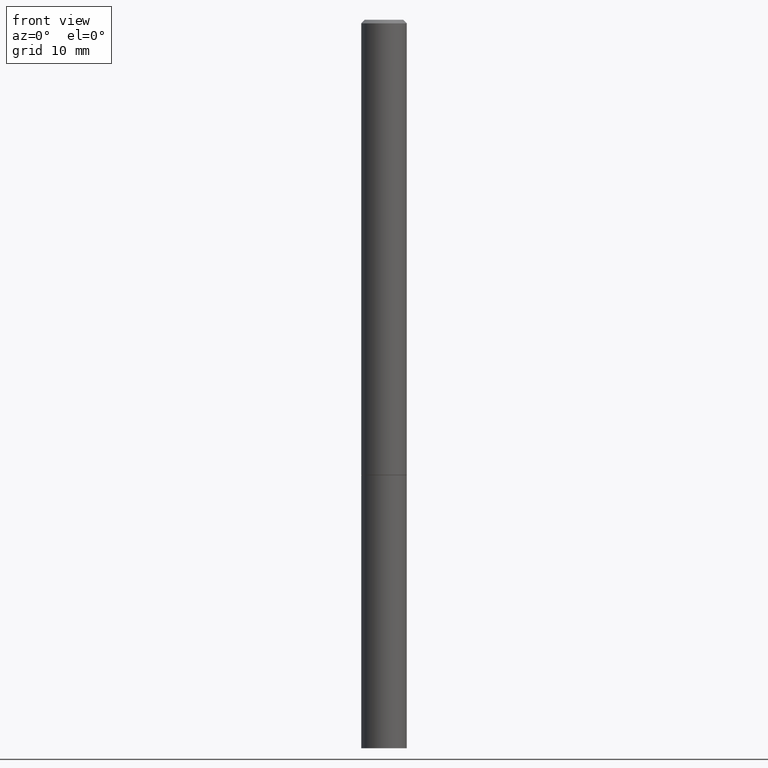
[diagram: clean part render]
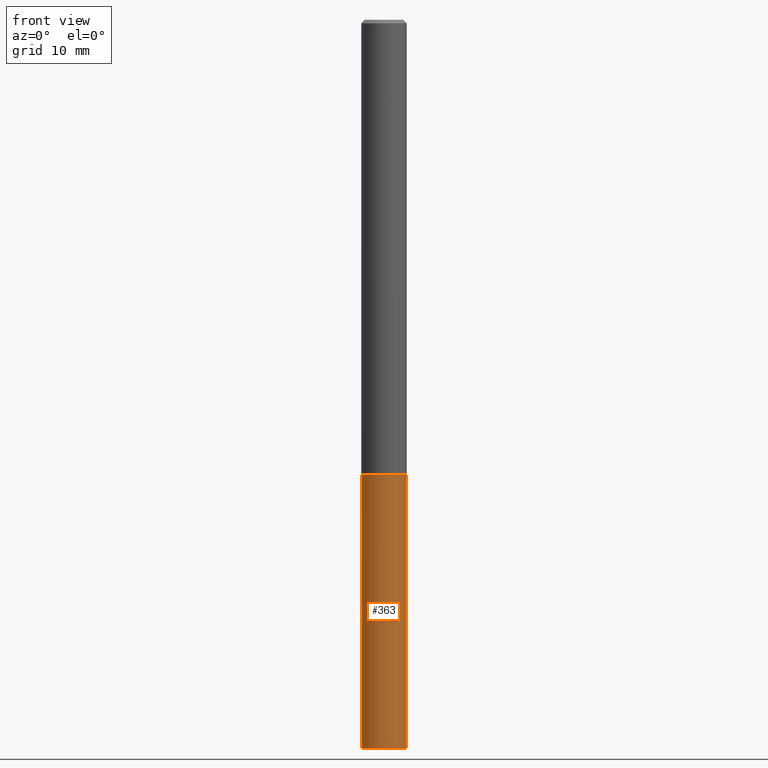
[diagram: same view with one face highlighted and labeled with its STEP entity id]
A machine part, front view. The second image highlights one B-rep face of the part: STEP entity #363.
In plain terms, the highlighted cylindrical surface (edge-blend (fillet) strip) has radius 3.175 mm, axis along (-0, 0, 1).
Its self-contained STEP definition (entity closure, byte-faithful):
#7 = AXIS2_PLACEMENT_3D ( 'NONE', #217, #327, #156 ) ;
#8 = EDGE_CURVE ( 'NONE', #333, #229, #209, .T. ) ;
#24 = CARTESIAN_POINT ( 'NONE',  ( 0.1250000000000000000, -9.601573681818648281E-15, -2.500000000000000000 ) ) ;
#39 = DIRECTION ( 'NONE',  ( -2.445468806185136597E-29, 3.491481338843145583E-15, 1.000000000000000000 ) ) ;
#41 = EDGE_CURVE ( 'NONE', #290, #305, #150, .T. ) ;
#42 = CARTESIAN_POINT ( 'NONE',  ( 0.1249999999999997918, -1.482348760509402220E-14, -4.000000000000000000 ) ) ;
#55 = CARTESIAN_POINT ( 'NONE',  ( -0.1250000000000000000, 8.881784197001252323E-16, -6.148668862818632227E-30 ) ) ;
#75 = CYLINDRICAL_SURFACE ( 'NONE', #361, 0.1250000000000000000 ) ;
#81 = DIRECTION ( 'NONE',  ( -2.445468806185136877E-29, 3.491481338843145188E-15, 1.000000000000000000 ) ) ;
#90 = DIRECTION ( 'NONE',  ( -2.445468806185136597E-29, 3.491481338843145583E-15, 1.000000000000000000 ) ) ;
#103 = CIRCLE ( 'NONE', #7, 0.1250000000000000000 ) ;
#104 = EDGE_LOOP ( 'NONE', ( #266, #109, #287, #261 ) ) ;
#106 = EDGE_CURVE ( 'NONE', #305, #229, #254, .T. ) ;
#109 = ORIENTED_EDGE ( 'NONE', *, *, #281, .T. ) ;
#115 = VECTOR ( 'NONE', #215, 39.37007874015748143 ) ;
#118 = CARTESIAN_POINT ( 'NONE',  ( -0.1250000000000000000, -1.045913593154009919E-14, -2.500000000000000000 ) ) ;
#150 = LINE ( 'NONE', #55, #242 ) ;
#153 = CARTESIAN_POINT ( 'NONE',  ( -0.1249999999999997918, -1.309305502066180057E-14, -4.000000000000000000 ) ) ;
#156 = DIRECTION ( 'NONE',  ( 1.000000000000000000, -6.982962677686262766E-15, 0.000000000000000000 ) ) ;
#165 = FACE_OUTER_BOUND ( 'NONE', #104, .T. ) ;
#198 = CARTESIAN_POINT ( 'NONE',  ( 0.000000000000000000, 0.000000000000000000, 0.000000000000000000 ) ) ;
#209 = LINE ( 'NONE', #239, #115 ) ;
#215 = DIRECTION ( 'NONE',  ( -2.445468806185136877E-29, 3.491481338843145188E-15, 1.000000000000000000 ) ) ;
#217 = CARTESIAN_POINT ( 'NONE',  ( 9.781875224740546387E-29, -1.396592535537258233E-14, -4.000000000000000000 ) ) ;
#229 = VERTEX_POINT ( 'NONE', #24 ) ;
#239 = CARTESIAN_POINT ( 'NONE',  ( 0.1250000000000000000, -8.728703347107833388E-16, 6.095220969744919741E-30 ) ) ;
#242 = VECTOR ( 'NONE', #81, 39.37007874015748143 ) ;
#254 = CIRCLE ( 'NONE', #353, 0.1250000000000000000 ) ;
#261 = ORIENTED_EDGE ( 'NONE', *, *, #106, .F. ) ;
#266 = ORIENTED_EDGE ( 'NONE', *, *, #41, .F. ) ;
#281 = EDGE_CURVE ( 'NONE', #290, #333, #103, .T. ) ;
#287 = ORIENTED_EDGE ( 'NONE', *, *, #8, .T. ) ;
#290 = VERTEX_POINT ( 'NONE', #153 ) ;
#303 = DIRECTION ( 'NONE',  ( 1.000000000000000000, -6.982962677686266711E-15, 4.876176775795935793E-29 ) ) ;
#305 = VERTEX_POINT ( 'NONE', #118 ) ;
#325 = CARTESIAN_POINT ( 'NONE',  ( 6.113672015462842613E-29, -8.728703347107864943E-15, -2.500000000000000000 ) ) ;
#327 = DIRECTION ( 'NONE',  ( -2.445468806185136597E-29, 3.491481338843145583E-15, 1.000000000000000000 ) ) ;
#333 = VERTEX_POINT ( 'NONE', #42 ) ;
#353 = AXIS2_PLACEMENT_3D ( 'NONE', #325, #90, #389 ) ;
#361 = AXIS2_PLACEMENT_3D ( 'NONE', #198, #39, #303 ) ;
#363 = ADVANCED_FACE ( 'NONE', ( #165 ), #75, .T. ) ;
#389 = DIRECTION ( 'NONE',  ( 1.000000000000000000, -6.982962677686270655E-15, 0.000000000000000000 ) ) ;